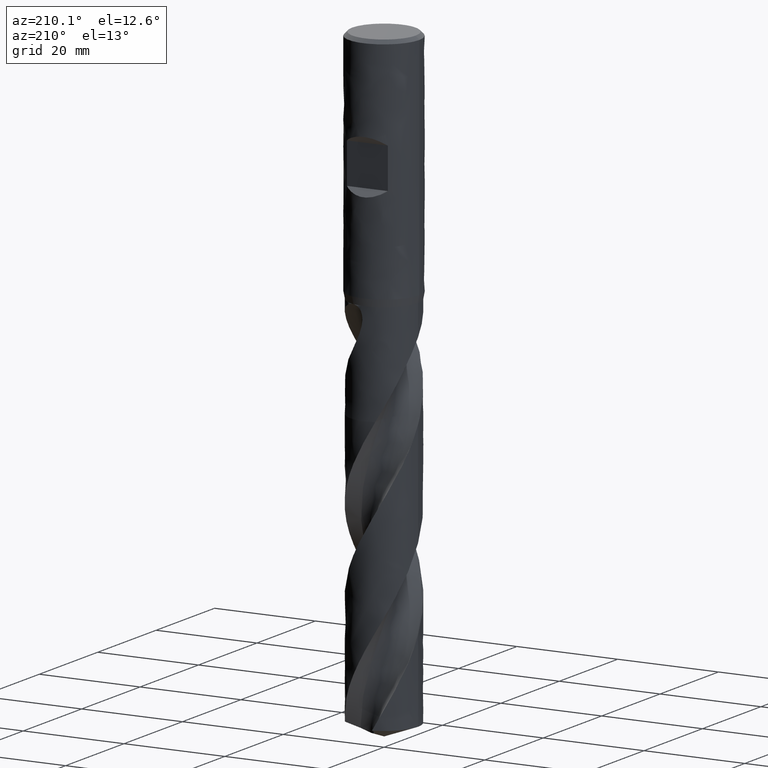
[diagram: clean part render]
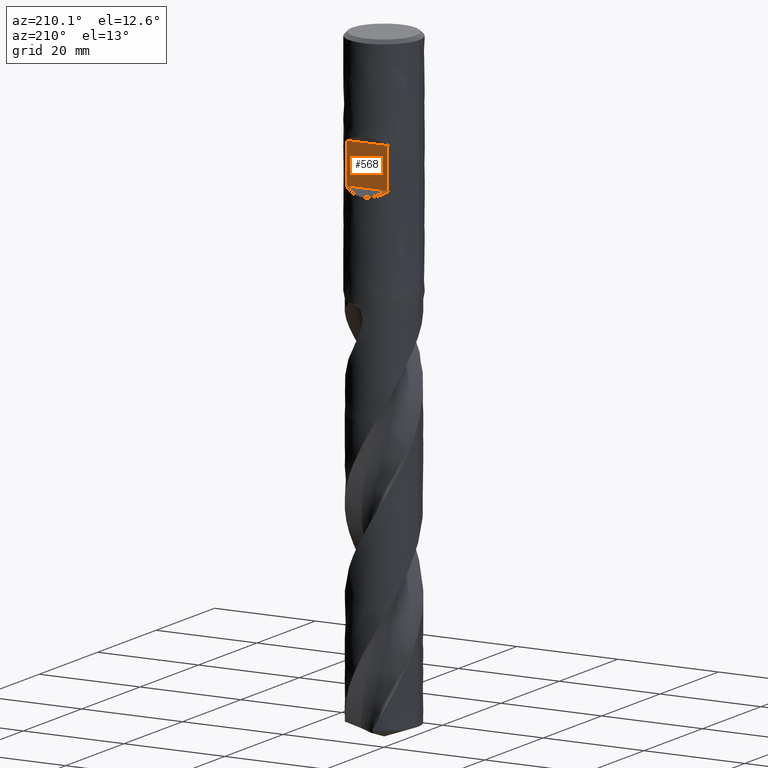
[diagram: same view with one face highlighted and labeled with its STEP entity id]
A machine part, auxiliary view. The second image highlights one B-rep face of the part: STEP entity #568.
In plain terms, the highlighted planar face has unit normal (0, 1, 0).
Its self-contained STEP definition (entity closure, byte-faithful):
#385 = VERTEX_POINT('', #386);
#386 = CARTESIAN_POINT('', (-4.06324993078201, 5.7, -18.5));
#387 = VERTEX_POINT('', #388);
#388 = CARTESIAN_POINT('', (4.06324993078201, 5.7, -18.5));
#458 = EDGE_CURVE('', #385, #459, #461, .T.);
#459 = VERTEX_POINT('', #460);
#460 = CARTESIAN_POINT('', (-4.06324993078201, 5.7, -26.5));
#461 = LINE('', #462, #463);
#462 = CARTESIAN_POINT('', (-4.06324993078201, 5.7, -18.5));
#463 = VECTOR('', #464, 8.);
#464 = DIRECTION('', (0., 8.88178419700125E-16, -8.));
#467 = VERTEX_POINT('', #468);
#468 = CARTESIAN_POINT('', (4.06324993078201, 5.7, -26.5));
#544 = EDGE_CURVE('', #387, #467, #545, .T.);
#545 = LINE('', #546, #547);
#546 = CARTESIAN_POINT('', (4.06324993078201, 5.7, -18.5));
#547 = VECTOR('', #548, 7.99999999999999);
#548 = DIRECTION('', (0., 0., -7.99999999999999));
#568 = ADVANCED_FACE('', (#569), #585, .T.);
#569 = FACE_OUTER_BOUND('', #570, .T.);
#570 = EDGE_LOOP('', (#571, #572, #578, #579));
#571 = ORIENTED_EDGE('', *, *, #544, .T.);
#572 = ORIENTED_EDGE('', *, *, #573, .T.);
#573 = EDGE_CURVE('', #467, #459, #574, .T.);
#574 = LINE('', #575, #576);
#575 = CARTESIAN_POINT('', (4.06324993078201, 5.7, -26.5));
#576 = VECTOR('', #577, 8.12649986156402);
#577 = DIRECTION('', (-8.12649986156402, 8.88178419700125E-16, 0.));
#578 = ORIENTED_EDGE('', *, *, #458, .F.);
#579 = ORIENTED_EDGE('', *, *, #580, .F.);
#580 = EDGE_CURVE('', #387, #385, #581, .T.);
#581 = LINE('', #582, #583);
#582 = CARTESIAN_POINT('', (4.06324993078201, 5.7, -18.5));
#583 = VECTOR('', #584, 8.12649986156402);
#584 = DIRECTION('', (-8.12649986156402, 8.88178419700125E-16, 0.));
#585 = PLANE('', #586);
#586 = AXIS2_PLACEMENT_3D('', #587, #588, #589);
#587 = CARTESIAN_POINT('', (7., 5.7, -26.5));
#588 = DIRECTION('', (1.26882631385732E-16, 1., 0.));
#589 = DIRECTION('', (-1., 1.26882631385732E-16, 0.));